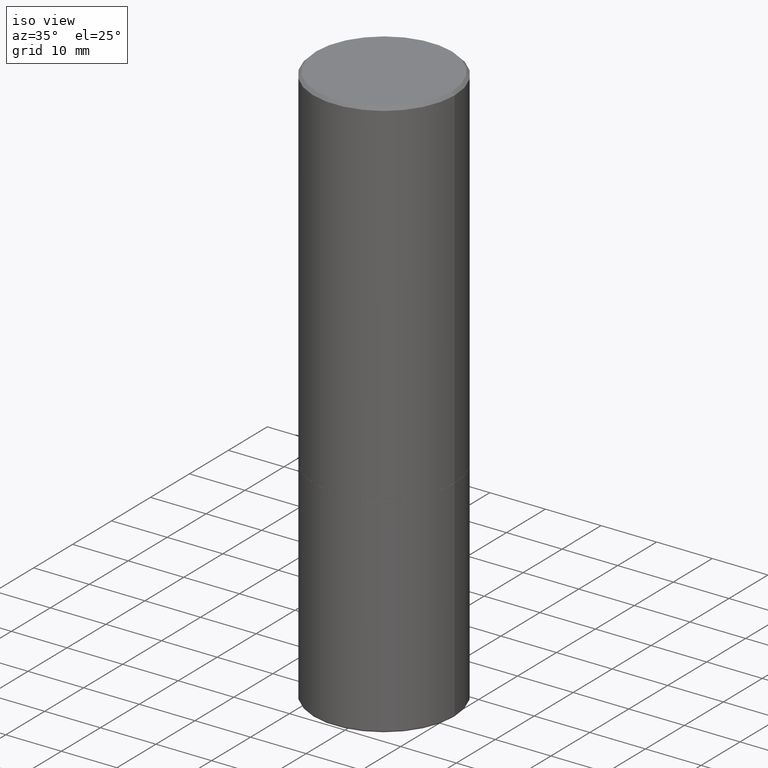
[diagram: clean part render]
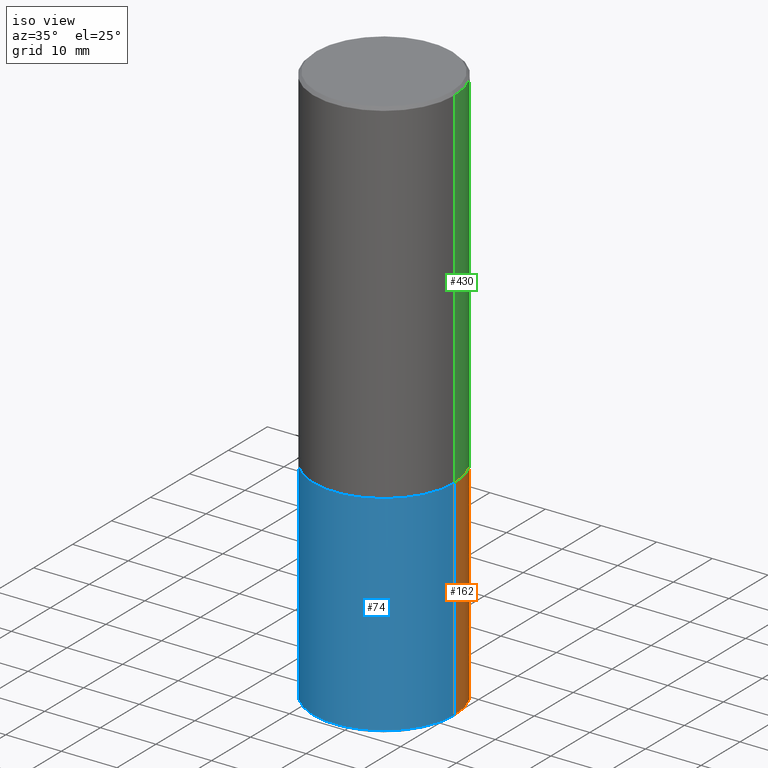
[diagram: same view with three faces highlighted in distinct colors, each labeled with its STEP entity id]
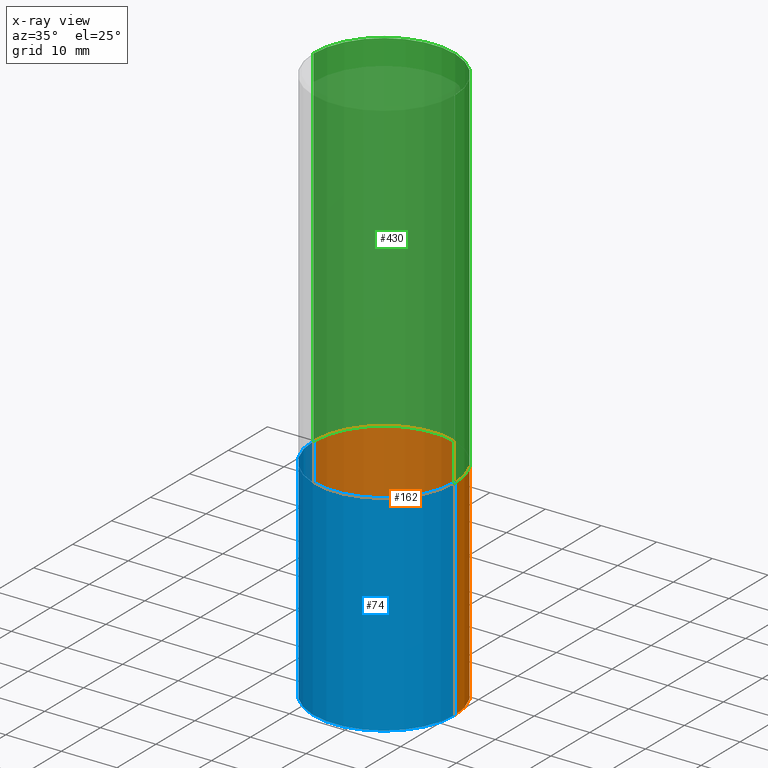
[diagram: x-ray of the same camera — body ghosted, the three highlighted faces saturated]
A machine part, iso view with three faces highlighted in distinct colors.
The next image is the same camera in x-ray (body ghosted, the three faces saturated) — at least one of them is partly hidden behind the body in this view.
Their STEP definitions:

[orange] entity #162 — the highlighted cylindrical surface (partial cylindrical patch) has radius 12.7 mm, axis along (-0, 0, 1).
#24 = CARTESIAN_POINT ( 'NONE',  ( 0.5000000000000000000, -1.740510624844051430E-14, -3.985020556978680961 ) ) ;
#46 = DIRECTION ( 'NONE',  ( 1.000000000000000000, -6.982962677686266711E-15, 0.000000000000000000 ) ) ;
#48 = CARTESIAN_POINT ( 'NONE',  ( 0.5000000000000000000, -1.222018468595099830E-14, -2.500000000000000000 ) ) ;
#73 = ORIENTED_EDGE ( 'NONE', *, *, #278, .F. ) ;
#91 = DIRECTION ( 'NONE',  ( -2.445468806185136597E-29, 3.491481338843145583E-15, 1.000000000000000000 ) ) ;
#100 = CYLINDRICAL_SURFACE ( 'NONE', #172, 0.5000000000000000000 ) ;
#113 = VECTOR ( 'NONE', #368, 39.37007874015748143 ) ;
#133 = CIRCLE ( 'NONE', #174, 0.5000000000000000000 ) ;
#140 = VERTEX_POINT ( 'NONE', #298 ) ;
#158 = CARTESIAN_POINT ( 'NONE',  ( -0.5000000000000000000, -7.768450449552122015E-15, -3.985020556978680961 ) ) ;
#160 = EDGE_LOOP ( 'NONE', ( #330, #425, #363, #73 ) ) ;
#162 = ADVANCED_FACE ( 'NONE', ( #400 ), #100, .T. ) ;
#163 = DIRECTION ( 'NONE',  ( -2.445468806185136877E-29, 3.491481338843145188E-15, 1.000000000000000000 ) ) ;
#172 = AXIS2_PLACEMENT_3D ( 'NONE', #359, #91, #193 ) ;
#174 = AXIS2_PLACEMENT_3D ( 'NONE', #323, #388, #46 ) ;
#193 = DIRECTION ( 'NONE',  ( 1.000000000000000000, -6.982962677686266711E-15, 4.876176775795935793E-29 ) ) ;
#199 = VERTEX_POINT ( 'NONE', #48 ) ;
#221 = EDGE_CURVE ( 'NONE', #199, #140, #392, .T. ) ;
#227 = CARTESIAN_POINT ( 'NONE',  ( 0.5000000000000000000, -3.491481338843133355E-15, 2.438088387897967896E-29 ) ) ;
#278 = EDGE_CURVE ( 'NONE', #314, #199, #364, .T. ) ;
#286 = CARTESIAN_POINT ( 'NONE',  ( 6.113672015462842613E-29, -8.728703347107864943E-15, -2.500000000000000000 ) ) ;
#291 = VECTOR ( 'NONE', #163, 39.37007874015748143 ) ;
#298 = CARTESIAN_POINT ( 'NONE',  ( -0.5000000000000000000, -7.768450449552122015E-15, -2.500000000000000000 ) ) ;
#310 = EDGE_CURVE ( 'NONE', #313, #140, #362, .T. ) ;
#313 = VERTEX_POINT ( 'NONE', #158 ) ;
#314 = VERTEX_POINT ( 'NONE', #24 ) ;
#323 = CARTESIAN_POINT ( 'NONE',  ( 9.745243464097882936E-29, -1.391362490959738252E-14, -3.985020556978680961 ) ) ;
#330 = ORIENTED_EDGE ( 'NONE', *, *, #408, .T. ) ;
#359 = CARTESIAN_POINT ( 'NONE',  ( 0.000000000000000000, 0.000000000000000000, 0.000000000000000000 ) ) ;
#362 = LINE ( 'NONE', #401, #113 ) ;
#363 = ORIENTED_EDGE ( 'NONE', *, *, #221, .F. ) ;
#364 = LINE ( 'NONE', #227, #291 ) ;
#368 = DIRECTION ( 'NONE',  ( -2.445468806185136877E-29, 3.491481338843145188E-15, 1.000000000000000000 ) ) ;
#370 = AXIS2_PLACEMENT_3D ( 'NONE', #286, #419, #435 ) ;
#388 = DIRECTION ( 'NONE',  ( -2.445468806185136597E-29, 3.491481338843145583E-15, 1.000000000000000000 ) ) ;
#392 = CIRCLE ( 'NONE', #370, 0.5000000000000000000 ) ;
#400 = FACE_OUTER_BOUND ( 'NONE', #160, .T. ) ;
#401 = CARTESIAN_POINT ( 'NONE',  ( -0.5000000000000000000, 3.552713678800500929E-15, -2.459467545127452891E-29 ) ) ;
#408 = EDGE_CURVE ( 'NONE', #314, #313, #133, .T. ) ;
#419 = DIRECTION ( 'NONE',  ( -2.445468806185136597E-29, 3.491481338843145583E-15, 1.000000000000000000 ) ) ;
#425 = ORIENTED_EDGE ( 'NONE', *, *, #310, .T. ) ;
#435 = DIRECTION ( 'NONE',  ( 1.000000000000000000, -6.982962677686269077E-15, 0.000000000000000000 ) ) ;

[blue] entity #74 — the highlighted cylindrical surface (partial cylindrical patch) has radius 12.7 mm, axis along (-0, 0, 1).
#9 = ORIENTED_EDGE ( 'NONE', *, *, #310, .F. ) ;
#20 = DIRECTION ( 'NONE',  ( 1.000000000000000000, -6.982962677686266711E-15, 0.000000000000000000 ) ) ;
#24 = CARTESIAN_POINT ( 'NONE',  ( 0.5000000000000000000, -1.740510624844051430E-14, -3.985020556978680961 ) ) ;
#28 = CARTESIAN_POINT ( 'NONE',  ( 0.000000000000000000, 0.000000000000000000, 0.000000000000000000 ) ) ;
#29 = CARTESIAN_POINT ( 'NONE',  ( 9.745243464097882936E-29, -1.391362490959738252E-14, -3.985020556978680961 ) ) ;
#37 = CIRCLE ( 'NONE', #331, 0.5000000000000000000 ) ;
#48 = CARTESIAN_POINT ( 'NONE',  ( 0.5000000000000000000, -1.222018468595099830E-14, -2.500000000000000000 ) ) ;
#69 = DIRECTION ( 'NONE',  ( -2.445468806185136597E-29, 3.491481338843145583E-15, 1.000000000000000000 ) ) ;
#74 = ADVANCED_FACE ( 'NONE', ( #338 ), #436, .T. ) ;
#92 = ORIENTED_EDGE ( 'NONE', *, *, #278, .T. ) ;
#113 = VECTOR ( 'NONE', #368, 39.37007874015748143 ) ;
#130 = EDGE_CURVE ( 'NONE', #140, #199, #37, .T. ) ;
#138 = DIRECTION ( 'NONE',  ( 1.000000000000000000, -6.982962677686266711E-15, 4.876176775795935793E-29 ) ) ;
#140 = VERTEX_POINT ( 'NONE', #298 ) ;
#145 = ORIENTED_EDGE ( 'NONE', *, *, #130, .F. ) ;
#158 = CARTESIAN_POINT ( 'NONE',  ( -0.5000000000000000000, -7.768450449552122015E-15, -3.985020556978680961 ) ) ;
#163 = DIRECTION ( 'NONE',  ( -2.445468806185136877E-29, 3.491481338843145188E-15, 1.000000000000000000 ) ) ;
#170 = DIRECTION ( 'NONE',  ( -2.445468806185136597E-29, 3.491481338843145583E-15, 1.000000000000000000 ) ) ;
#199 = VERTEX_POINT ( 'NONE', #48 ) ;
#210 = DIRECTION ( 'NONE',  ( -2.445468806185136597E-29, 3.491481338843145583E-15, 1.000000000000000000 ) ) ;
#211 = DIRECTION ( 'NONE',  ( 1.000000000000000000, -6.982962677686269077E-15, 0.000000000000000000 ) ) ;
#227 = CARTESIAN_POINT ( 'NONE',  ( 0.5000000000000000000, -3.491481338843133355E-15, 2.438088387897967896E-29 ) ) ;
#245 = CIRCLE ( 'NONE', #256, 0.5000000000000000000 ) ;
#254 = ORIENTED_EDGE ( 'NONE', *, *, #312, .T. ) ;
#256 = AXIS2_PLACEMENT_3D ( 'NONE', #29, #210, #20 ) ;
#271 = AXIS2_PLACEMENT_3D ( 'NONE', #28, #170, #138 ) ;
#278 = EDGE_CURVE ( 'NONE', #314, #199, #364, .T. ) ;
#291 = VECTOR ( 'NONE', #163, 39.37007874015748143 ) ;
#298 = CARTESIAN_POINT ( 'NONE',  ( -0.5000000000000000000, -7.768450449552122015E-15, -2.500000000000000000 ) ) ;
#310 = EDGE_CURVE ( 'NONE', #313, #140, #362, .T. ) ;
#312 = EDGE_CURVE ( 'NONE', #313, #314, #245, .T. ) ;
#313 = VERTEX_POINT ( 'NONE', #158 ) ;
#314 = VERTEX_POINT ( 'NONE', #24 ) ;
#331 = AXIS2_PLACEMENT_3D ( 'NONE', #344, #69, #211 ) ;
#338 = FACE_OUTER_BOUND ( 'NONE', #426, .T. ) ;
#344 = CARTESIAN_POINT ( 'NONE',  ( 6.113672015462842613E-29, -8.728703347107864943E-15, -2.500000000000000000 ) ) ;
#362 = LINE ( 'NONE', #401, #113 ) ;
#364 = LINE ( 'NONE', #227, #291 ) ;
#368 = DIRECTION ( 'NONE',  ( -2.445468806185136877E-29, 3.491481338843145188E-15, 1.000000000000000000 ) ) ;
#401 = CARTESIAN_POINT ( 'NONE',  ( -0.5000000000000000000, 3.552713678800500929E-15, -2.459467545127452891E-29 ) ) ;
#426 = EDGE_LOOP ( 'NONE', ( #9, #254, #92, #145 ) ) ;
#436 = CYLINDRICAL_SURFACE ( 'NONE', #271, 0.5000000000000000000 ) ;

[green] entity #430 — the highlighted cylindrical surface (partial cylindrical patch) has radius 12.7 mm, axis along (-0, 0, 1).
#25 = EDGE_CURVE ( 'NONE', #115, #157, #367, .T. ) ;
#30 = CARTESIAN_POINT ( 'NONE',  ( -0.4999999999999998335, 3.552713678800499746E-15, -2.459467545127452330E-29 ) ) ;
#32 = CARTESIAN_POINT ( 'NONE',  ( -0.5000000000000000000, -8.448070674724403070E-16, -2.499000000000000110 ) ) ;
#49 = CYLINDRICAL_SURFACE ( 'NONE', #250, 0.4999999999999998335 ) ;
#71 = EDGE_CURVE ( 'NONE', #224, #157, #377, .T. ) ;
#79 = ORIENTED_EDGE ( 'NONE', *, *, #155, .F. ) ;
#98 = LINE ( 'NONE', #135, #339 ) ;
#106 = DIRECTION ( 'NONE',  ( -2.445468806185136597E-29, 3.491481338843145583E-15, 1.000000000000000000 ) ) ;
#109 = ORIENTED_EDGE ( 'NONE', *, *, #25, .T. ) ;
#115 = VERTEX_POINT ( 'NONE', #32 ) ;
#132 = CARTESIAN_POINT ( 'NONE',  ( 6.111226546656657010E-29, -8.725211865769021935E-15, -2.499000000000000110 ) ) ;
#135 = CARTESIAN_POINT ( 'NONE',  ( 0.4999999999999998335, -3.491481338843132566E-15, 2.438088387897967336E-29 ) ) ;
#150 = EDGE_LOOP ( 'NONE', ( #295, #109, #161, #79 ) ) ;
#152 = CARTESIAN_POINT ( 'NONE',  ( 0.000000000000000000, 0.000000000000000000, 0.000000000000000000 ) ) ;
#154 = CIRCLE ( 'NONE', #315, 0.5000000000000000000 ) ;
#155 = EDGE_CURVE ( 'NONE', #191, #224, #98, .T. ) ;
#157 = VERTEX_POINT ( 'NONE', #264 ) ;
#161 = ORIENTED_EDGE ( 'NONE', *, *, #71, .F. ) ;
#169 = CARTESIAN_POINT ( 'NONE',  ( 0.4999999999999996669, -3.500078625662626318E-15, -0.02000000000000002123 ) ) ;
#184 = FACE_OUTER_BOUND ( 'NONE', #150, .T. ) ;
#191 = VERTEX_POINT ( 'NONE', #416 ) ;
#192 = DIRECTION ( 'NONE',  ( -2.445468806185136597E-29, 3.491481338843145583E-15, 1.000000000000000000 ) ) ;
#202 = DIRECTION ( 'NONE',  ( -2.445468806185136877E-29, 3.491481338843145188E-15, 1.000000000000000000 ) ) ;
#224 = VERTEX_POINT ( 'NONE', #169 ) ;
#231 = DIRECTION ( 'NONE',  ( 1.000000000000000000, -6.982962677686265133E-15, 0.000000000000000000 ) ) ;
#238 = VECTOR ( 'NONE', #407, 39.37007874015748143 ) ;
#250 = AXIS2_PLACEMENT_3D ( 'NONE', #152, #192, #320 ) ;
#253 = EDGE_CURVE ( 'NONE', #191, #115, #154, .T. ) ;
#264 = CARTESIAN_POINT ( 'NONE',  ( -0.4999999999999996669, 3.421651712066268085E-15, -0.02000000000000002123 ) ) ;
#295 = ORIENTED_EDGE ( 'NONE', *, *, #253, .T. ) ;
#304 = DIRECTION ( 'NONE',  ( 1.000000000000000000, -6.982962677686266711E-15, 0.000000000000000000 ) ) ;
#308 = AXIS2_PLACEMENT_3D ( 'NONE', #341, #106, #304 ) ;
#315 = AXIS2_PLACEMENT_3D ( 'NONE', #132, #399, #231 ) ;
#320 = DIRECTION ( 'NONE',  ( 1.000000000000000000, -6.982962677686267499E-15, 4.876176775795936353E-29 ) ) ;
#339 = VECTOR ( 'NONE', #202, 39.37007874015748143 ) ;
#341 = CARTESIAN_POINT ( 'NONE',  ( 4.890937612370278413E-31, -6.982962677686297772E-17, -0.02000000000000002123 ) ) ;
#367 = LINE ( 'NONE', #30, #238 ) ;
#377 = CIRCLE ( 'NONE', #308, 0.4999999999999996669 ) ;
#399 = DIRECTION ( 'NONE',  ( -2.445468806185136597E-29, 3.491481338843145583E-15, 1.000000000000000000 ) ) ;
#407 = DIRECTION ( 'NONE',  ( -2.445468806185136877E-29, 3.491481338843145188E-15, 1.000000000000000000 ) ) ;
#416 = CARTESIAN_POINT ( 'NONE',  ( 0.5000000000000000000, -1.221669320461215371E-14, -2.499000000000000110 ) ) ;
#430 = ADVANCED_FACE ( 'NONE', ( #184 ), #49, .T. ) ;